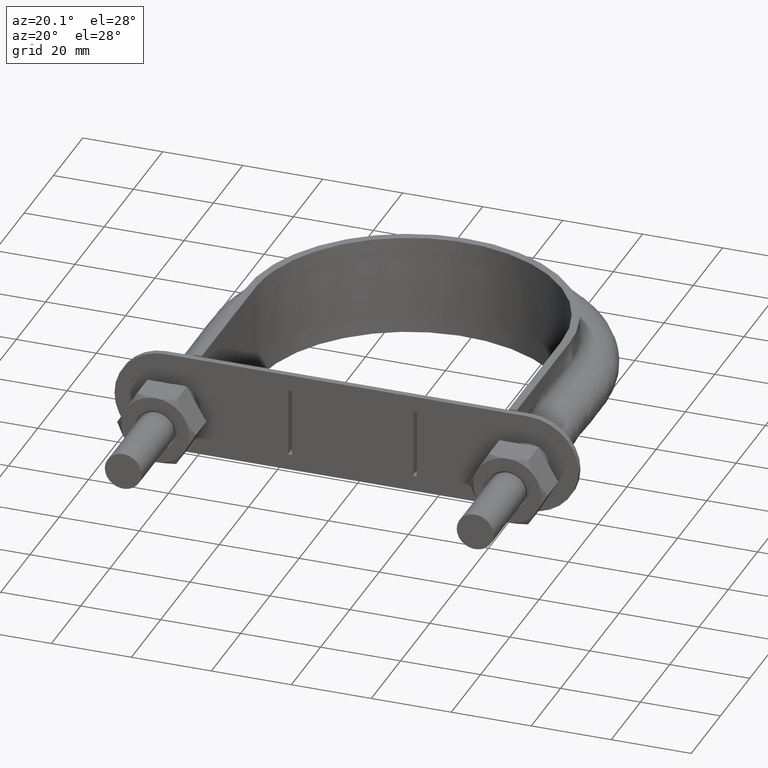
[diagram: clean part render]
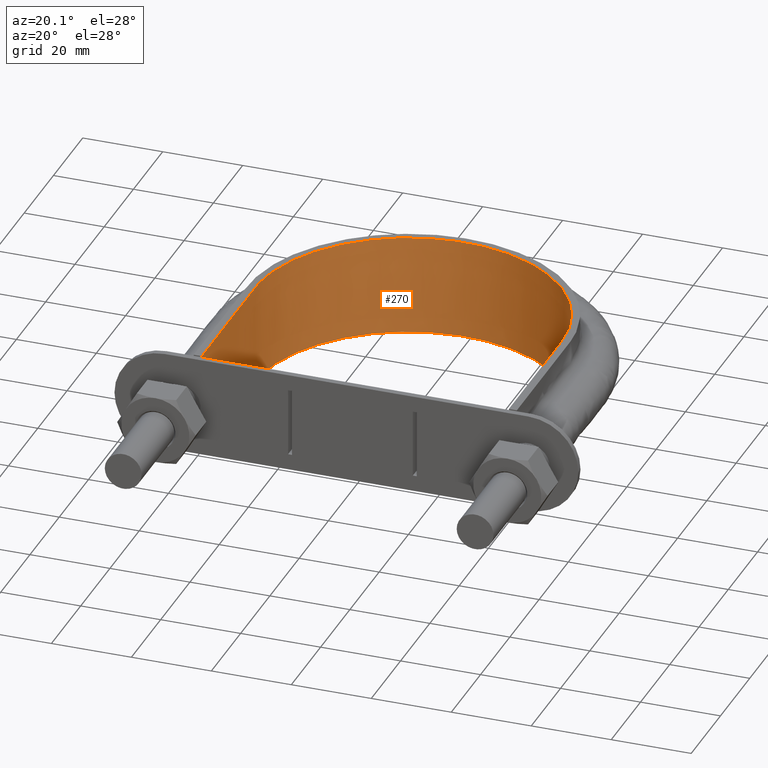
[diagram: same view with one face highlighted and labeled with its STEP entity id]
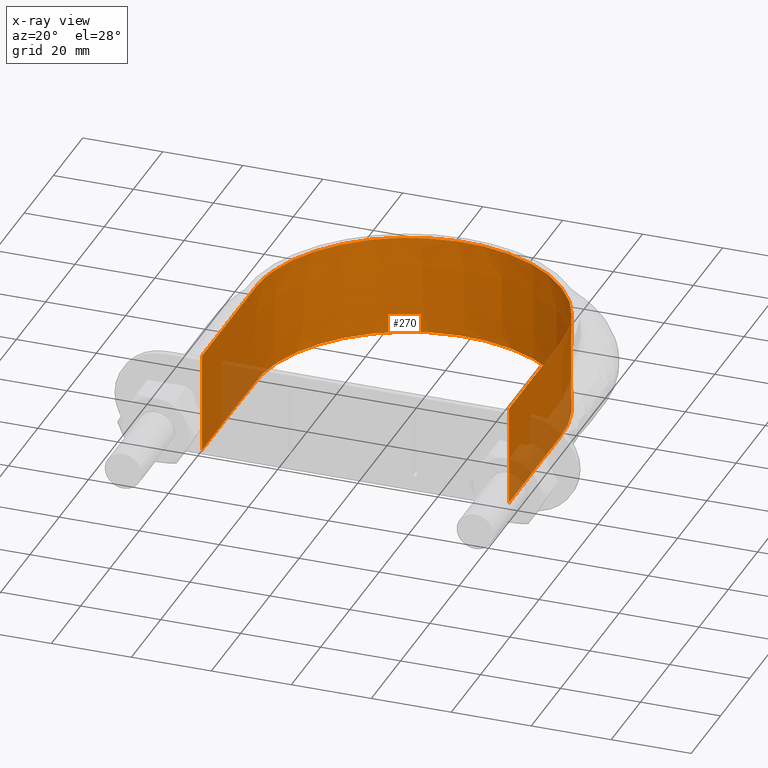
[diagram: x-ray of the same camera — body ghosted, the highlighted face saturated]
A machine part, auxiliary view. The second image highlights one B-rep face of the part: STEP entity #270.
The next image is the same camera in x-ray: the body ghosted, the highlighted face saturated — about 10% of this face is hidden behind the body in this view.
In plain terms, the highlighted face is a SurfaceOfExtrusion surface.
Its self-contained STEP definition (entity closure, byte-faithful):
#270 = ADVANCED_FACE( '', ( #389 ), #390, .T. );
#389 = FACE_OUTER_BOUND( '', #646, .T. );
#390 = SURFACE_OF_LINEAR_EXTRUSION( '', #647, #648 );
#646 = EDGE_LOOP( '', ( #1743, #1744, #1745, #1746 ) );
#647 = B_SPLINE_CURVE_WITH_KNOTS( '', 3, ( #1747, #1748, #1749, #1750, #1751, #1752, #1753, #1754, #1755, #1756, #1757, #1758, #1759, #1760, #1761, #1762, #1763 ), .UNSPECIFIED., .F., .F., ( 4, 3, 1, 1, 1, 1, 1, 1, 1, 3, 4 ), ( -7.93017456359102, -7.00000000000000, -6.50000000000000, -6.00000000000000, -5.00000000000000, -4.00000000000000, -3.00000000000000, -2.00000000000000, -1.50000000000000, -1.00000000000000, -0.0698254364089773 ), .UNSPECIFIED. );
#648 = VECTOR( '', #1764, 1000.00000000000 );
#1743 = ORIENTED_EDGE( '', *, *, #2557, .T. );
#1744 = ORIENTED_EDGE( '', *, *, #2549, .T. );
#1745 = ORIENTED_EDGE( '', *, *, #2552, .T. );
#1746 = ORIENTED_EDGE( '', *, *, #2556, .T. );
#1747 = CARTESIAN_POINT( '', ( 38.4000000000000, 37.3000000000000, 12.5000100000909 ) );
#1748 = CARTESIAN_POINT( '', ( 38.4000000000000, 49.7333333333333, 12.5000100000909 ) );
#1749 = CARTESIAN_POINT( '', ( 38.4000000000000, 62.1666666666667, 12.5000100000909 ) );
#1750 = CARTESIAN_POINT( '', ( 38.4000000000000, 74.6000000000000, 12.5000100000909 ) );
#1751 = CARTESIAN_POINT( '', ( 38.4000000000000, 77.9378960382428, 12.5000100000909 ) );
#1752 = CARTESIAN_POINT( '', ( 37.5004323173849, 84.6534987012364, 12.5000100000909 ) );
#1753 = CARTESIAN_POINT( '', ( 32.3590360537293, 97.1468427507952, 12.5000100000909 ) );
#1754 = CARTESIAN_POINT( '', ( 20.0971465093487, 109.410921736661, 12.5000100000909 ) );
#1755 = CARTESIAN_POINT( '', ( 2.79356000082899E-014, 114.794539131670, 12.5000100000909 ) );
#1756 = CARTESIAN_POINT( '', ( -20.0971465093486, 109.410921736661, 12.5000100000909 ) );
#1757 = CARTESIAN_POINT( '', ( -32.3590360537293, 97.1468427507952, 12.5000100000909 ) );
#1758 = CARTESIAN_POINT( '', ( -37.5004323173848, 84.6534987012364, 12.5000100000909 ) );
#1759 = CARTESIAN_POINT( '', ( -38.4000000000000, 77.9378960382428, 12.5000100000909 ) );
#1760 = CARTESIAN_POINT( '', ( -38.4000000000000, 74.6000000000000, 12.5000100000909 ) );
#1761 = CARTESIAN_POINT( '', ( -38.4000000000000, 62.1666666666667, 12.5000100000909 ) );
#1762 = CARTESIAN_POINT( '', ( -38.4000000000000, 49.7333333333333, 12.5000100000909 ) );
#1763 = CARTESIAN_POINT( '', ( -38.4000000000000, 37.3000000000000, 12.5000100000909 ) );
#1764 = DIRECTION( '', ( 0.000000000000000, 0.000000000000000, -1.00000000000000 ) );
#2549 = EDGE_CURVE( '', #2787, #2792, #2794, .F. );
#2552 = EDGE_CURVE( '', #2792, #2797, #2799, .T. );
#2556 = EDGE_CURVE( '', #2797, #2804, #2806, .T. );
#2557 = EDGE_CURVE( '', #2804, #2787, #2807, .F. );
#2787 = VERTEX_POINT( '', #3194 );
#2792 = VERTEX_POINT( '', #3230 );
#2794 = LINE( '', #3233, #3234 );
#2797 = VERTEX_POINT( '', #3253 );
#2799 = B_SPLINE_CURVE_WITH_KNOTS( '', 3, ( #3256, #3257, #3258, #3259, #3260, #3261, #3262, #3263, #3264, #3265, #3266, #3267, #3268, #3269, #3270, #3271, #3272, #3273, #3274, #3275, #3276, #3277, #3278, #3279, #3280, #3281, #3282, #3283, #3284, #3285, #3286, #3287, #3288, #3289, #3290, #3291, #3292, #3293, #3294, #3295, #3296, #3297, #3298, #3299, #3300, #3301, #3302, #3303, #3304, #3305, #3306, #3307, #3308, #3309, #3310, #3311, #3312, #3313, #3314, #3315, #3316, #3317, #3318, #3319, #3320, #3321, #3322, #3323, #3324, #3325, #3326, #3327, #3328, #3329, #3330, #3331, #3332, #3333, #3334, #3335, #3336, #3337 ), .UNSPECIFIED., .F., .F., ( 4, 1, 2, 2, 2, 2, 2, 2, 2, 2, 2, 2, 2, 2, 2, 2, 2, 2, 2, 2, 2, 2, 2, 2, 2, 2, 2, 2, 2, 2, 2, 2, 2, 2, 2, 2, 2, 2, 2, 2, 1, 4 ), ( 0.00109999991914770, 0.0251627246924827, 0.0371940870791502, 0.0386980073774836, 0.0402019276758170, 0.0432097682724839, 0.0462176088691507, 0.0477215291674842, 0.0492254494658176, 0.0552411306591513, 0.0582489712558181, 0.0612568118524849, 0.0672724930458186, 0.0702803336424855, 0.0717842539408189, 0.0732881742391524, 0.0793038554324862, 0.0853195366258199, 0.0883273772224868, 0.0913352178191537, 0.0973508990124875, 0.0988548193108209, 0.100358739609154, 0.103366580205821, 0.109382261399155, 0.112390101995822, 0.115397942592489, 0.121413623785822, 0.124421464382489, 0.127429304979156, 0.133444986172490, 0.136452826769157, 0.137956747067490, 0.139460667365824, 0.145476348559157, 0.148484189155824, 0.151492029752491, 0.154499870349158, 0.156003790647491, 0.157507710945825, 0.169539073332492, 0.193601798105828 ), .UNSPECIFIED. );
#2804 = VERTEX_POINT( '', #3381 );
#2806 = LINE( '', #3384, #3385 );
#2807 = B_SPLINE_CURVE_WITH_KNOTS( '', 3, ( #3386, #3387, #3388, #3389, #3390, #3391, #3392, #3393, #3394, #3395, #3396, #3397, #3398, #3399, #3400, #3401, #3402 ), .UNSPECIFIED., .F., .F., ( 4, 3, 1, 1, 1, 1, 1, 1, 1, 3, 4 ), ( -7.90274314416090, -7.00000000000000, -6.50000000000000, -6.00000000000000, -5.00000000000000, -4.00000000000000, -3.00000000000000, -2.00000000000000, -1.50000000000000, -1.00000000000000, -0.0972568558390958 ), .UNSPECIFIED. );
#3194 = CARTESIAN_POINT( '', ( 38.4000000000000, 38.3999999191477, -12.5000000000000 ) );
#3230 = CARTESIAN_POINT( '', ( 38.4000000000000, 38.3999999191477, 12.5000000000000 ) );
#3233 = CARTESIAN_POINT( '', ( 38.4000000000000, 38.3999999191477, 1.73472347597681E-015 ) );
#3234 = VECTOR( '', #4082, 1000.00000000000 );
#3253 = CARTESIAN_POINT( '', ( -38.4000000000000, 38.3999999191477, 12.5000000000000 ) );
#3256 = CARTESIAN_POINT( '', ( 38.4000000000000, 38.3999999191477, 12.5000000000000 ) );
#3257 = CARTESIAN_POINT( '', ( 38.4000000000000, 46.4209081769260, 12.5000000000000 ) );
#3258 = CARTESIAN_POINT( '', ( 38.4000000000000, 58.4522705635935, 12.5000000000000 ) );
#3259 = CARTESIAN_POINT( '', ( 38.4000000000000, 70.4836329502610, 12.5000000000000 ) );
#3260 = CARTESIAN_POINT( '', ( 38.4000000000000, 74.9953938452614, 12.5000000000000 ) );
#3261 = CARTESIAN_POINT( '', ( 38.3925531743063, 75.4961974519256, 12.5000000000000 ) );
#3262 = CARTESIAN_POINT( '', ( 38.3552119655202, 76.4962879518207, 12.5000000000000 ) );
#3263 = CARTESIAN_POINT( '', ( 38.3265964128169, 76.9956612517459, 12.5000000000000 ) );
#3264 = CARTESIAN_POINT( '', ( 38.2113185711489, 78.4917925756301, 12.5000000000000 ) );
#3265 = CARTESIAN_POINT( '', ( 38.0952967981282, 79.4865668682159, 12.5000000000000 ) );
#3266 = CARTESIAN_POINT( '', ( 37.7853128309560, 81.4708492553051, 12.5000000000000 ) );
#3267 = CARTESIAN_POINT( '', ( 37.5913559295045, 82.4603577074202, 12.5000000000000 ) );
#3268 = CARTESIAN_POINT( '', ( 37.2404952321126, 83.9405714116011, 12.5000000000000 ) );
#3269 = CARTESIAN_POINT( '', ( 37.1133403133288, 84.4338248137922, 12.5000000000000 ) );
#3270 = CARTESIAN_POINT( '', ( 36.8411875462473, 85.4100988089512, 12.5000000000000 ) );
#3271 = CARTESIAN_POINT( '', ( 36.6959645706642, 85.8941818684858, 12.5000000000000 ) );
#3272 = CARTESIAN_POINT( '', ( 35.9246825678649, 88.2945782645723, 12.5000000000000 ) );
#3273 = CARTESIAN_POINT( '', ( 35.1641719689470, 90.1513001883666, 12.5000000000000 ) );
#3274 = CARTESIAN_POINT( '', ( 33.8061692646694, 92.8400997208569, 12.5000000000000 ) );
#3275 = CARTESIAN_POINT( '', ( 33.3169982617363, 93.7201872370860, 12.5000000000000 ) );
#3276 = CARTESIAN_POINT( '', ( 32.2633434356441, 95.4469822405924, 12.5000000000000 ) );
#3277 = CARTESIAN_POINT( '', ( 31.6968839767721, 96.2963199755826, 12.5000000000000 ) );
#3278 = CARTESIAN_POINT( '', ( 29.9145966944236, 98.7518377372034, 12.5000000000000 ) );
#3279 = CARTESIAN_POINT( '', ( 28.6098669189891, 100.279229512554, 12.5000000000000 ) );
#3280 = CARTESIAN_POINT( '', ( 26.4843286304329, 102.411873053793, 12.5000000000000 ) );
#3281 = CARTESIAN_POINT( '', ( 25.7475618400063, 103.096177481449, 12.5000000000000 ) );
#3282 = CARTESIAN_POINT( '', ( 24.5992107766502, 104.081997826287, 12.5000000000000 ) );
#3283 = CARTESIAN_POINT( '', ( 24.2092156944038, 104.403821311354, 12.5000000000000 ) );
#3284 = CARTESIAN_POINT( '', ( 23.4145232809915, 105.033638818292, 12.5000000000000 ) );
#3285 = CARTESIAN_POINT( '', ( 23.0090260695533, 105.342180306693, 12.5000000000000 ) );
#3286 = CARTESIAN_POINT( '', ( 20.9609197107751, 106.837301953256, 12.5000000000000 ) );
#3287 = CARTESIAN_POINT( '', ( 19.2477635262589, 107.889139633975, 12.5000000000000 ) );
#3288 = CARTESIAN_POINT( '', ( 15.6747951492532, 109.709485258533, 12.5000000000000 ) );
#3289 = CARTESIAN_POINT( '', ( 13.8158726463682, 110.479712024021, 12.5000000000000 ) );
#3290 = CARTESIAN_POINT( '', ( 10.9168600870254, 111.421324615849, 12.5000000000000 ) );
#3291 = CARTESIAN_POINT( '', ( 9.94070556380363, 111.696346909695, 12.5000000000000 ) );
#3292 = CARTESIAN_POINT( '', ( 7.98121086613684, 112.167327764617, 12.5000000000000 ) );
#3293 = CARTESIAN_POINT( '', ( 6.99595032082895, 112.363910893146, 12.5000000000000 ) );
#3294 = CARTESIAN_POINT( '', ( 4.02375371267286, 112.837817820629, 12.5000000000000 ) );
#3295 = CARTESIAN_POINT( '', ( 2.02054579217151, 113.000309138496, 12.5000000000000 ) );
#3296 = CARTESIAN_POINT( '', ( -0.512300385336997, 112.999922168116, 12.5000000000000 ) );
#3297 = CARTESIAN_POINT( '', ( -1.02148164698156, 112.989528215284, 12.5000000000000 ) );
#3298 = CARTESIAN_POINT( '', ( -2.03611861064146, 112.948343141880, 12.5000000000000 ) );
#3299 = CARTESIAN_POINT( '', ( -2.54141931865653, 112.917619381530, 12.5000000000000 ) );
#3300 = CARTESIAN_POINT( '', ( -4.05141524907702, 112.795793156953, 12.5000000000000 ) );
#3301 = CARTESIAN_POINT( '', ( -5.05021663205330, 112.675097779503, 12.5000000000000 ) );
#3302 = CARTESIAN_POINT( '', ( -8.02373244503826, 112.198089524227, 12.5000000000000 ) );
#3303 = CARTESIAN_POINT( '', ( -9.97574556391779, 111.727793573333, 12.5000000000000 ) );
#3304 = CARTESIAN_POINT( '', ( -12.8576017579909, 110.790563219863, 12.5000000000000 ) );
#3305 = CARTESIAN_POINT( '', ( -13.8146109465500, 110.437416761343, 12.5000000000000 ) );
#3306 = CARTESIAN_POINT( '', ( -15.6854452577231, 109.661609930888, 12.5000000000000 ) );
#3307 = CARTESIAN_POINT( '', ( -16.6003395129909, 109.239042210674, 12.5000000000000 ) );
#3308 = CARTESIAN_POINT( '', ( -19.2840656855935, 107.868380018665, 12.5000000000000 ) );
#3309 = CARTESIAN_POINT( '', ( -20.9914462524891, 106.816490843373, 12.5000000000000 ) );
#3310 = CARTESIAN_POINT( '', ( -23.4309922496217, 105.033394933773, 12.5000000000000 ) );
#3311 = CARTESIAN_POINT( '', ( -24.2250847266600, 104.403805035547, 12.5000000000000 ) );
#3312 = CARTESIAN_POINT( '', ( -25.7669331532275, 103.078903547123, 12.5000000000000 ) );
#3313 = CARTESIAN_POINT( '', ( -26.5069363814525, 102.390423728852, 12.5000000000000 ) );
#3314 = CARTESIAN_POINT( '', ( -28.6371113297570, 100.249362006457, 12.5000000000000 ) );
#3315 = CARTESIAN_POINT( '', ( -29.9381750568137, 98.7217696023365, 12.5000000000000 ) );
#3316 = CARTESIAN_POINT( '', ( -31.7090832722785, 96.2782795977193, 12.5000000000000 ) );
#3317 = CARTESIAN_POINT( '', ( -32.2690908924643, 95.4382807058161, 12.5000000000000 ) );
#3318 = CARTESIAN_POINT( '', ( -33.0616355531616, 94.1383251654849, 12.5000000000000 ) );
#3319 = CARTESIAN_POINT( '', ( -33.3180010121438, 93.6979882424607, 12.5000000000000 ) );
#3320 = CARTESIAN_POINT( '', ( -33.8101055397917, 92.8119056846709, 12.5000000000000 ) );
#3321 = CARTESIAN_POINT( '', ( -34.0464851101109, 92.3652059831871, 12.5000000000000 ) );
#3322 = CARTESIAN_POINT( '', ( -35.1811474834293, 90.1138419928354, 12.5000000000000 ) );
#3323 = CARTESIAN_POINT( '', ( -35.9388288994825, 88.2559992082596, 12.5000000000000 ) );
#3324 = CARTESIAN_POINT( '', ( -36.8580212459879, 85.3870361932836, 12.5000000000000 ) );
#3325 = CARTESIAN_POINT( '', ( -37.1279729121493, 84.4169306023811, 12.5000000000000 ) );
#3326 = CARTESIAN_POINT( '', ( -37.5937284369923, 82.4486751107194, 12.5000000000000 ) );
#3327 = CARTESIAN_POINT( '', ( -37.7898242437959, 81.4470935637193, 12.5000000000000 ) );
#3328 = CARTESIAN_POINT( '', ( -38.1002695194262, 79.4494538019985, 12.5000000000000 ) );
#3329 = CARTESIAN_POINT( '', ( -38.2156898331489, 78.4499917781673, 12.5000000000000 ) );
#3330 = CARTESIAN_POINT( '', ( -38.3295123304880, 76.9498419088938, 12.5000000000000 ) );
#3331 = CARTESIAN_POINT( '', ( -38.3575500077258, 76.4496321818617, 12.5000000000000 ) );
#3332 = CARTESIAN_POINT( '', ( -38.3936647734563, 75.4488906975631, 12.5000000000000 ) );
#3333 = CARTESIAN_POINT( '', ( -38.4000000000000, 74.9483308383093, 12.5000000000000 ) );
#3334 = CARTESIAN_POINT( '', ( -38.4000000000000, 70.4423722318373, 12.5000000000000 ) );
#3335 = CARTESIAN_POINT( '', ( -38.4000000000000, 58.4264826145787, 12.5000000000000 ) );
#3336 = CARTESIAN_POINT( '', ( -38.4000000000000, 46.4105929973202, 12.5000000000000 ) );
#3337 = CARTESIAN_POINT( '', ( -38.4000000000000, 38.3999999191477, 12.5000000000000 ) );
#3381 = CARTESIAN_POINT( '', ( -38.4000000000000, 38.3999999191477, -12.5000000000000 ) );
#3384 = CARTESIAN_POINT( '', ( -38.4000000000000, 38.3999999191477, 1.73472347597681E-015 ) );
#3385 = VECTOR( '', #4085, 1000.00000000000 );
#3386 = CARTESIAN_POINT( '', ( 38.4000000000000, 38.3999999191477, -12.5000000000000 ) );
#3387 = CARTESIAN_POINT( '', ( 38.4000000000000, 50.4666666127651, -12.5000000000000 ) );
#3388 = CARTESIAN_POINT( '', ( 38.4000000000000, 62.5333333063826, -12.5000000000000 ) );
#3389 = CARTESIAN_POINT( '', ( 38.4000000000000, 74.6000000000000, -12.5000000000000 ) );
#3390 = CARTESIAN_POINT( '', ( 38.4000000000000, 77.9378960382428, -12.5000000000000 ) );
#3391 = CARTESIAN_POINT( '', ( 37.5004323173849, 84.6534987012364, -12.5000000000000 ) );
#3392 = CARTESIAN_POINT( '', ( 32.3590360537293, 97.1468427507952, -12.5000000000000 ) );
#3393 = CARTESIAN_POINT( '', ( 20.0971465093487, 109.410921736661, -12.5000000000000 ) );
#3394 = CARTESIAN_POINT( '', ( 2.79356000082899E-014, 114.794539131670, -12.5000000000000 ) );
#3395 = CARTESIAN_POINT( '', ( -20.0971465093486, 109.410921736661, -12.5000000000000 ) );
#3396 = CARTESIAN_POINT( '', ( -32.3590360537293, 97.1468427507952, -12.5000000000000 ) );
#3397 = CARTESIAN_POINT( '', ( -37.5004323173848, 84.6534987012364, -12.5000000000000 ) );
#3398 = CARTESIAN_POINT( '', ( -38.4000000000000, 77.9378960382428, -12.5000000000000 ) );
#3399 = CARTESIAN_POINT( '', ( -38.4000000000000, 74.6000000000000, -12.5000000000000 ) );
#3400 = CARTESIAN_POINT( '', ( -38.4000000000000, 62.5333333063826, -12.5000000000000 ) );
#3401 = CARTESIAN_POINT( '', ( -38.4000000000000, 50.4666666127652, -12.5000000000000 ) );
#3402 = CARTESIAN_POINT( '', ( -38.4000000000000, 38.3999999191477, -12.5000000000000 ) );
#4082 = DIRECTION( '', ( 0.000000000000000, 0.000000000000000, -1.00000000000000 ) );
#4085 = DIRECTION( '', ( 0.000000000000000, 0.000000000000000, -1.00000000000000 ) );